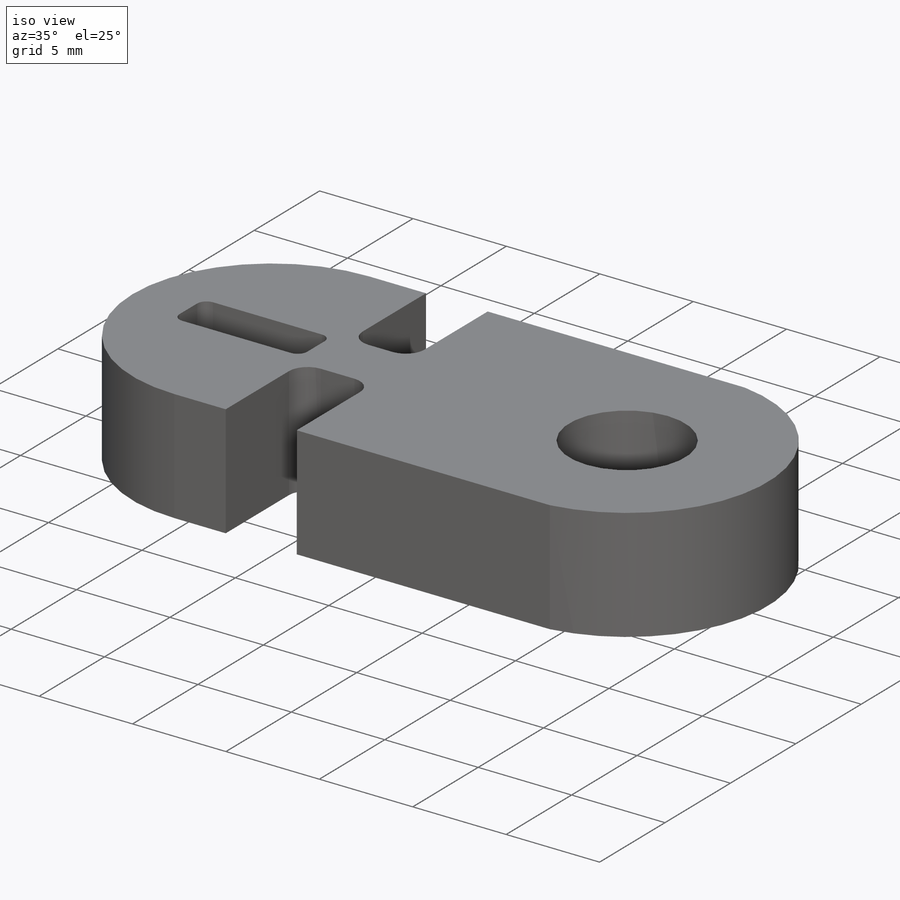
[diagram: iso view]
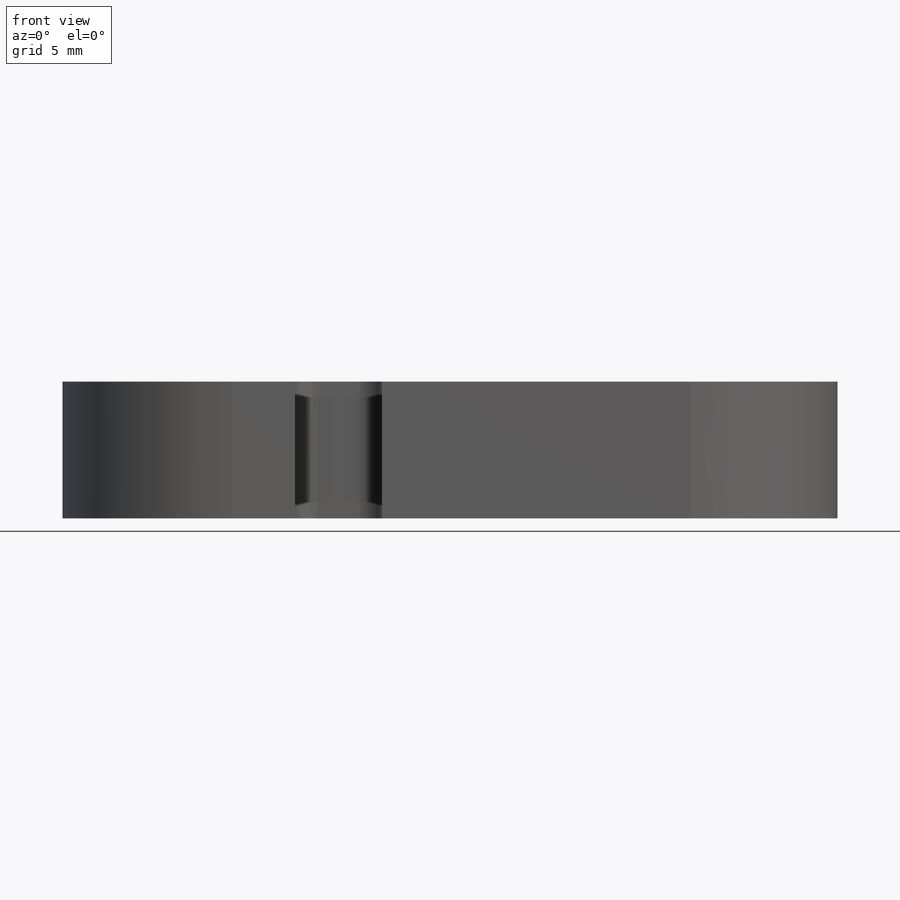
[diagram: front view]
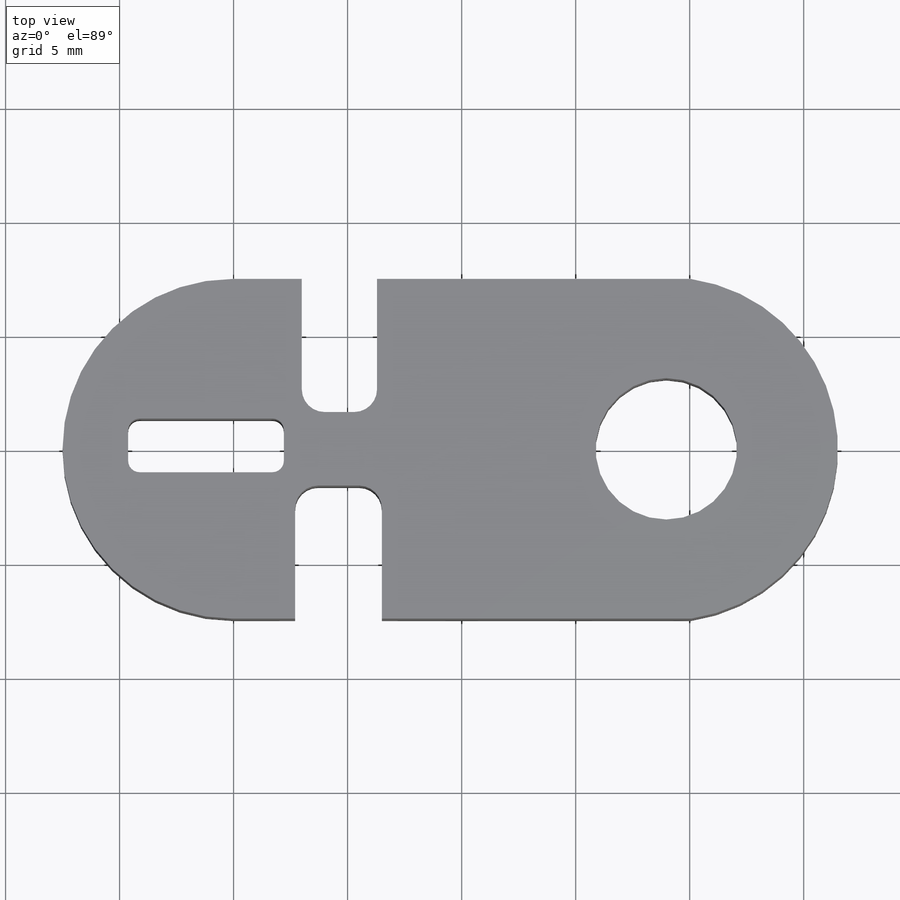
[diagram: top view]
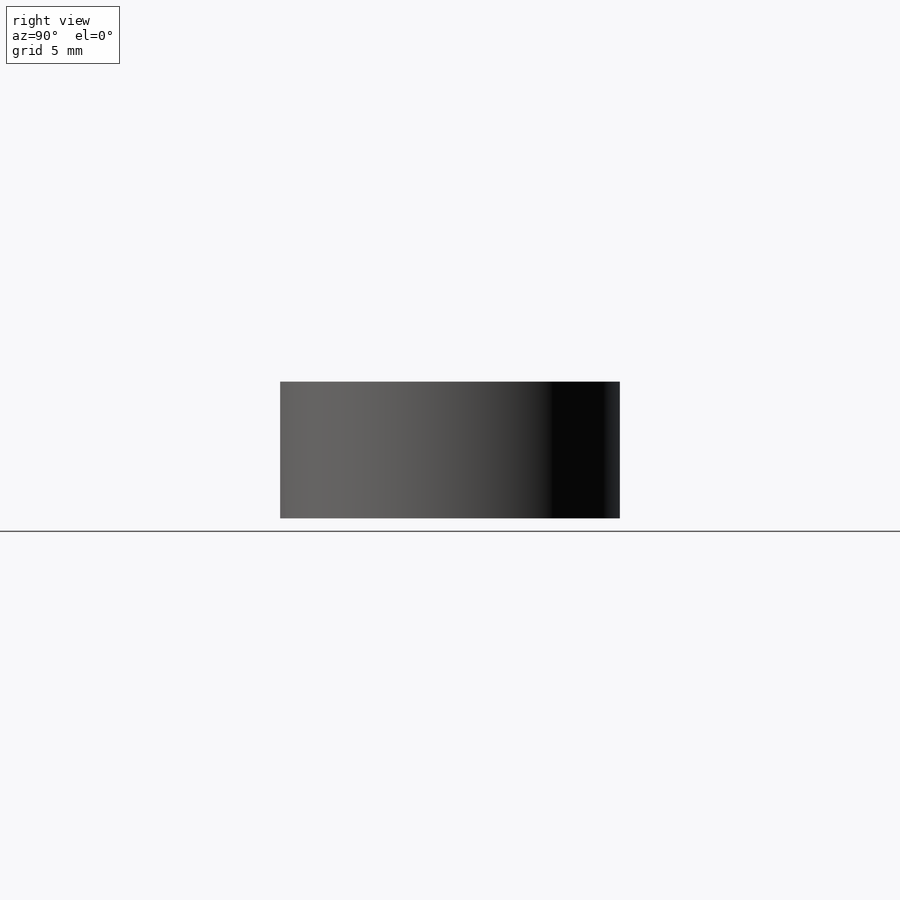
[diagram: right view]
SOLIDWORKS PART (.sldprt)
format: sldprt  version: not decoded by parser v0  size: 189,440 bytes
history: native  units: mm
features: plane x3, sketch x2, fillet x2, material x1, extrude x1, cut_extrude x1 (+9 scaffold rows collapsed)
feature tree (19):
  scaffold x9  (default folders/planes/origin — collapsed)
  material  "Material <sin especificar>"
  plane  "Alzado"
  plane  "Planta"
  plane  "Vista lateral"
  sketch  "Croquis1"  dims[D4=6.2mm D1=14.9mm D2=34.0mm D3=10.2mm D5=3.8mm]
  extrude  "Saliente-Extruir1"  Depth=6mm
  sketch  "Croquis2"
  cut_extrude  "Cortar-Extruir1"  Depth=7mm
  fillet  "Redondeo1"  Radius=1mm
  fillet  "Redondeo2"  Radius=0.5mm
decode coverage: 5 of 6 modeling features carry decoded parameters
note: suppression state not decoded; provenance and decode notes live in map.json
